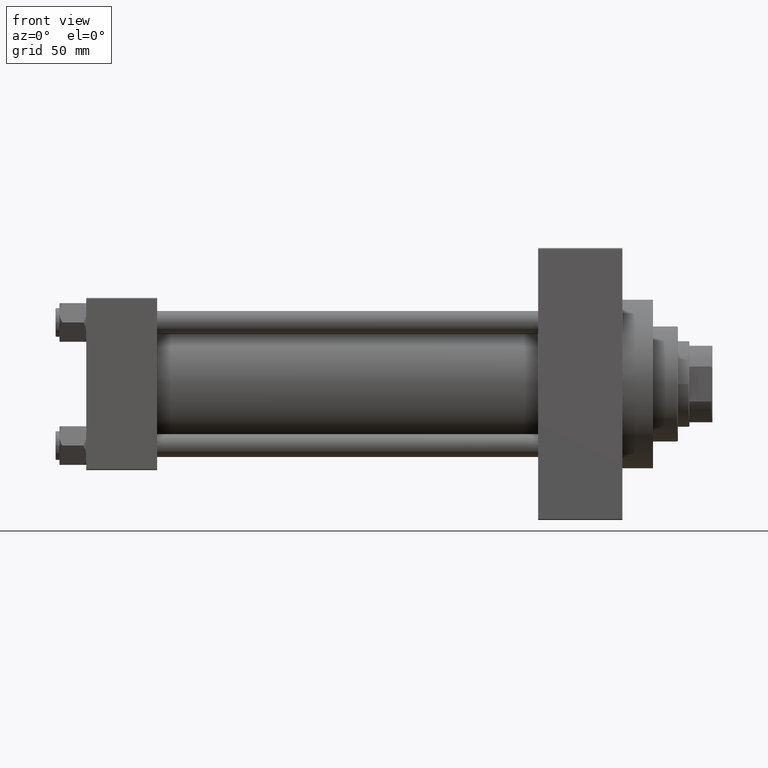
[diagram: clean part render]
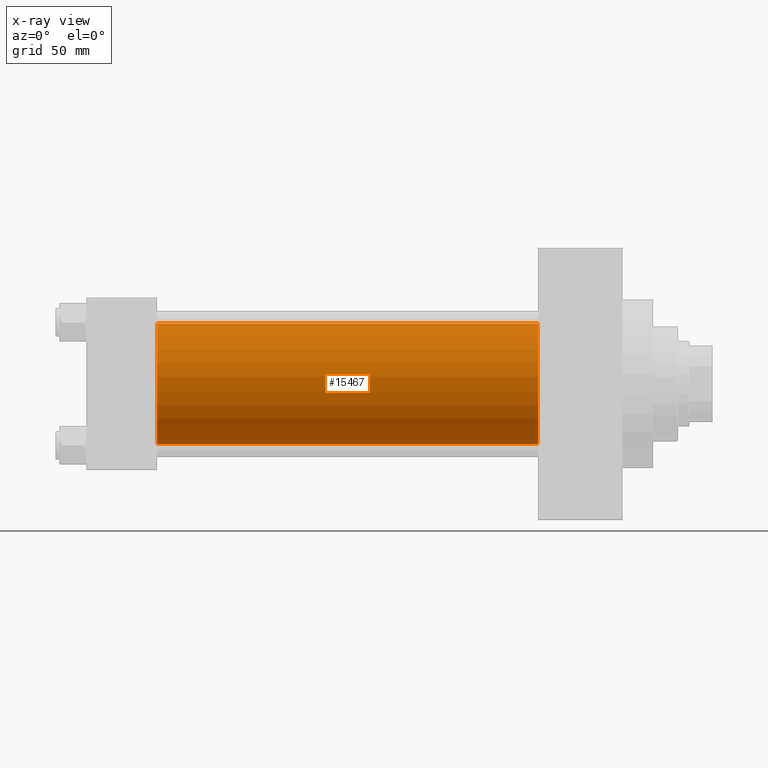
[diagram: x-ray — body ghosted, one internal face saturated and labeled with its STEP entity id]
A machine part, front view, then the same camera in x-ray: the body is ghosted and one INTERNAL B-rep face — a face not visible from any outside direction — is saturated and labeled: STEP entity #15467.
In plain terms, the highlighted cylindrical surface (partial cylindrical patch) has radius 31.5 mm, axis along (-1, -0, -0).
Its self-contained STEP definition (entity closure, byte-faithful):
#932 = EDGE_CURVE ( 'NONE', #40687, #24200, #34375, .T. ) ;
#1371 = DIRECTION ( 'NONE',  ( 1.000000000000000000, 0.000000000000000000, 0.000000000000000000 ) ) ;
#1628 = VERTEX_POINT ( 'NONE', #1822 ) ;
#1822 = CARTESIAN_POINT ( 'NONE',  ( 236.0000000000000284, 1.255552203348951850E-15, -31.50000000000000000 ) ) ;
#2411 = ORIENTED_EDGE ( 'NONE', *, *, #10949, .T. ) ;
#4983 = VECTOR ( 'NONE', #36938, 1000.000000000000000 ) ;
#5611 = CARTESIAN_POINT ( 'NONE',  ( 37.00000000000000000, -2.602085213965210642E-15, 31.50000000000000000 ) ) ;
#10940 = VERTEX_POINT ( 'NONE', #44318 ) ;
#10949 = EDGE_CURVE ( 'NONE', #1628, #24200, #19054, .T. ) ;
#11233 = CYLINDRICAL_SURFACE ( 'NONE', #44618, 31.50000000000000000 ) ;
#11449 = DIRECTION ( 'NONE',  ( -1.000000000000000000, -0.000000000000000000, -0.000000000000000000 ) ) ;
#11689 = DIRECTION ( 'NONE',  ( 0.000000000000000000, 0.000000000000000000, 1.000000000000000000 ) ) ;
#11769 = VECTOR ( 'NONE', #11449, 1000.000000000000000 ) ;
#11938 = LINE ( 'NONE', #22672, #4983 ) ;
#12308 = ORIENTED_EDGE ( 'NONE', *, *, #38572, .T. ) ;
#14142 = CIRCLE ( 'NONE', #30119, 31.50000000000000000 ) ;
#15266 = DIRECTION ( 'NONE',  ( -1.000000000000000000, -0.000000000000000000, -0.000000000000000000 ) ) ;
#15467 = ADVANCED_FACE ( 'NONE', ( #28870 ), #11233, .F. ) ;
#15909 = DIRECTION ( 'NONE',  ( 0.000000000000000000, 0.000000000000000000, -1.000000000000000000 ) ) ;
#19054 = LINE ( 'NONE', #26220, #11769 ) ;
#21267 = ORIENTED_EDGE ( 'NONE', *, *, #932, .F. ) ;
#22672 = CARTESIAN_POINT ( 'NONE',  ( 236.0000000000000284, -2.602085213965210642E-15, 31.50000000000000000 ) ) ;
#24200 = VERTEX_POINT ( 'NONE', #38853 ) ;
#25281 = AXIS2_PLACEMENT_3D ( 'NONE', #27316, #45174, #41846 ) ;
#26220 = CARTESIAN_POINT ( 'NONE',  ( 236.0000000000000284, 1.255552203348951850E-15, -31.50000000000000000 ) ) ;
#27316 = CARTESIAN_POINT ( 'NONE',  ( 37.00000000000000000, -2.602085213965210642E-15, 0.000000000000000000 ) ) ;
#28870 = FACE_OUTER_BOUND ( 'NONE', #32785, .T. ) ;
#30119 = AXIS2_PLACEMENT_3D ( 'NONE', #34238, #1371, #15909 ) ;
#32785 = EDGE_LOOP ( 'NONE', ( #12308, #2411, #21267, #34090 ) ) ;
#34090 = ORIENTED_EDGE ( 'NONE', *, *, #34372, .F. ) ;
#34238 = CARTESIAN_POINT ( 'NONE',  ( 236.0000000000000284, -2.602085213965210642E-15, 0.000000000000000000 ) ) ;
#34372 = EDGE_CURVE ( 'NONE', #10940, #40687, #11938, .T. ) ;
#34375 = CIRCLE ( 'NONE', #25281, 31.50000000000000000 ) ;
#36938 = DIRECTION ( 'NONE',  ( -1.000000000000000000, -0.000000000000000000, -0.000000000000000000 ) ) ;
#38572 = EDGE_CURVE ( 'NONE', #10940, #1628, #14142, .T. ) ;
#38853 = CARTESIAN_POINT ( 'NONE',  ( 37.00000000000000000, 1.255552203348951850E-15, -31.50000000000000000 ) ) ;
#40687 = VERTEX_POINT ( 'NONE', #5611 ) ;
#41846 = DIRECTION ( 'NONE',  ( 0.000000000000000000, 0.000000000000000000, -1.000000000000000000 ) ) ;
#43398 = CARTESIAN_POINT ( 'NONE',  ( 236.0000000000000284, -2.602085213965210642E-15, 0.000000000000000000 ) ) ;
#44318 = CARTESIAN_POINT ( 'NONE',  ( 236.0000000000000284, -2.602085213965210642E-15, 31.50000000000000000 ) ) ;
#44618 = AXIS2_PLACEMENT_3D ( 'NONE', #43398, #15266, #11689 ) ;
#45174 = DIRECTION ( 'NONE',  ( 1.000000000000000000, 0.000000000000000000, 0.000000000000000000 ) ) ;